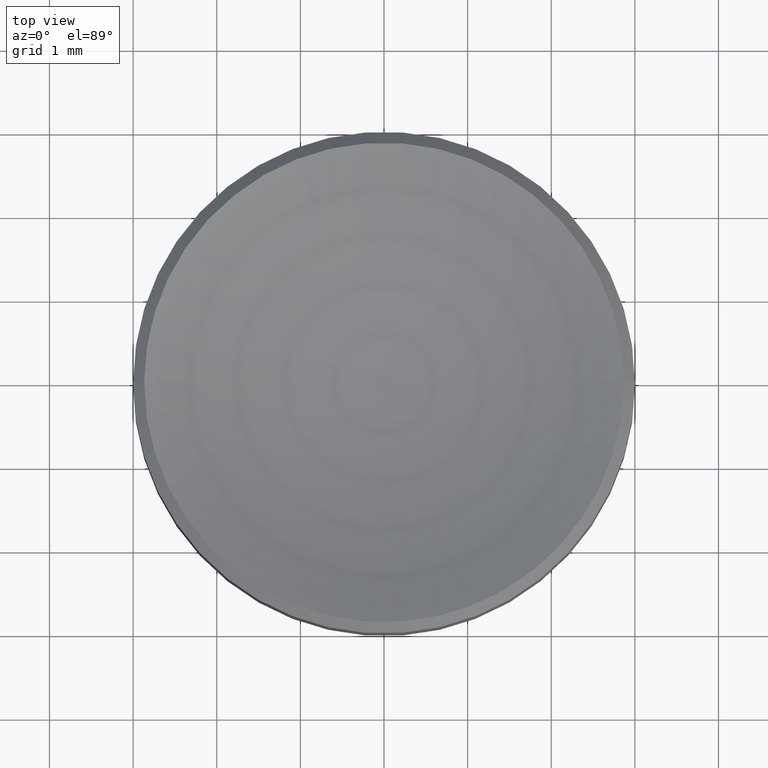
[diagram: clean part render]
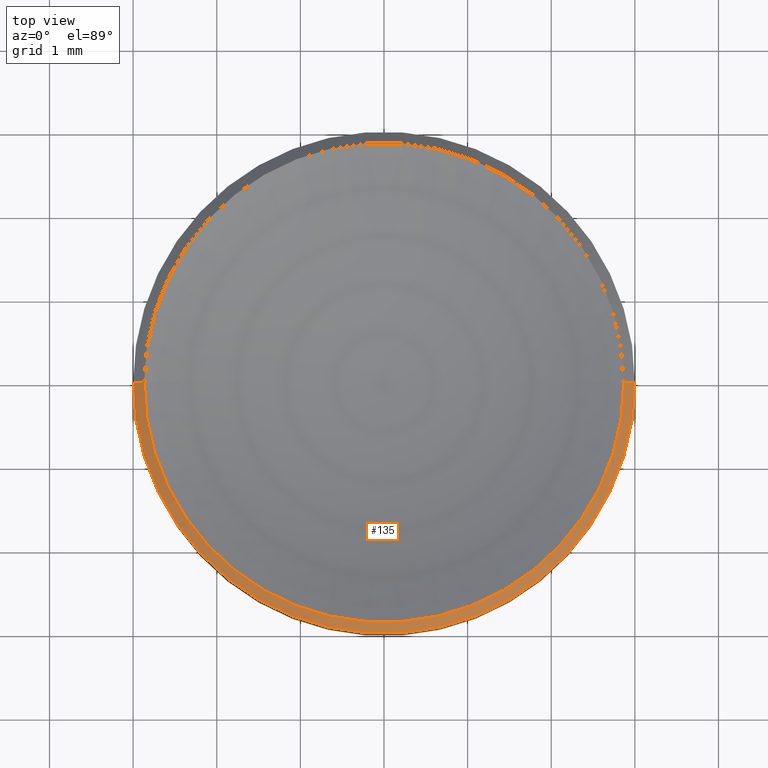
[diagram: same view with one face highlighted and labeled with its STEP entity id]
A machine part, top view. The second image highlights one B-rep face of the part: STEP entity #135.
In plain terms, the highlighted conical surface has half-angle 45 deg.
Its self-contained STEP definition (entity closure, byte-faithful):
#17 = DIRECTION ( 'NONE',  ( -1.000000000000000000, 0.000000000000000000, 0.000000000000000000 ) ) ;
#18 = EDGE_CURVE ( 'NONE', #139, #178, #134, .T. ) ;
#23 = ORIENTED_EDGE ( 'NONE', *, *, #148, .F. ) ;
#35 = ORIENTED_EDGE ( 'NONE', *, *, #108, .F. ) ;
#41 = CARTESIAN_POINT ( 'NONE',  ( 0.000000000000000000, 0.000000000000000000, 2.039999999999998259 ) ) ;
#54 = VECTOR ( 'NONE', #116, 1000.000000000000114 ) ;
#62 = DIRECTION ( 'NONE',  ( 0.000000000000000000, 0.000000000000000000, -1.000000000000000000 ) ) ;
#64 = CARTESIAN_POINT ( 'NONE',  ( 2.867573379116970411, 0.000000000000000000, 2.172426620883027404 ) ) ;
#65 = VERTEX_POINT ( 'NONE', #196 ) ;
#70 = AXIS2_PLACEMENT_3D ( 'NONE', #204, #62, #81 ) ;
#81 = DIRECTION ( 'NONE',  ( -1.000000000000000000, 0.000000000000000000, 0.000000000000000000 ) ) ;
#91 = CARTESIAN_POINT ( 'NONE',  ( -2.867573379116970411, 0.000000000000000000, 2.172426620883026960 ) ) ;
#93 = ORIENTED_EDGE ( 'NONE', *, *, #205, .F. ) ;
#94 = CARTESIAN_POINT ( 'NONE',  ( 0.000000000000000000, 0.000000000000000000, 2.172426620883026960 ) ) ;
#96 = CARTESIAN_POINT ( 'NONE',  ( -2.867573379116970411, 3.511764560055757538E-16, 2.172426620883027404 ) ) ;
#105 = AXIS2_PLACEMENT_3D ( 'NONE', #41, #181, #17 ) ;
#108 = EDGE_CURVE ( 'NONE', #65, #178, #182, .T. ) ;
#116 = DIRECTION ( 'NONE',  ( 0.7071067811865499042, 8.659560562354962440E-17, -0.7071067811865452413 ) ) ;
#134 = LINE ( 'NONE', #91, #250 ) ;
#135 = ADVANCED_FACE ( 'NONE', ( #246 ), #262, .T. ) ;
#136 = VERTEX_POINT ( 'NONE', #64 ) ;
#139 = VERTEX_POINT ( 'NONE', #96 ) ;
#148 = EDGE_CURVE ( 'NONE', #136, #65, #155, .T. ) ;
#155 = LINE ( 'NONE', #221, #54 ) ;
#157 = DIRECTION ( 'NONE',  ( -0.7071067811865499042, 0.000000000000000000, -0.7071067811865452413 ) ) ;
#165 = CIRCLE ( 'NONE', #176, 2.867573379116970411 ) ;
#176 = AXIS2_PLACEMENT_3D ( 'NONE', #94, #186, #188 ) ;
#178 = VERTEX_POINT ( 'NONE', #185 ) ;
#181 = DIRECTION ( 'NONE',  ( 0.000000000000000000, 0.000000000000000000, -1.000000000000000000 ) ) ;
#182 = CIRCLE ( 'NONE', #105, 3.000000000000000000 ) ;
#185 = CARTESIAN_POINT ( 'NONE',  ( -3.000000000000000000, 3.673940397442059868E-16, 2.039999999999998259 ) ) ;
#186 = DIRECTION ( 'NONE',  ( -0.000000000000000000, -0.000000000000000000, 1.000000000000000000 ) ) ;
#188 = DIRECTION ( 'NONE',  ( 1.000000000000000000, 0.000000000000000000, 0.000000000000000000 ) ) ;
#196 = CARTESIAN_POINT ( 'NONE',  ( 3.000000000000000000, 0.000000000000000000, 2.039999999999998259 ) ) ;
#204 = CARTESIAN_POINT ( 'NONE',  ( 0.000000000000000000, 0.000000000000000000, 2.172426620883026960 ) ) ;
#205 = EDGE_CURVE ( 'NONE', #139, #136, #165, .T. ) ;
#220 = ORIENTED_EDGE ( 'NONE', *, *, #18, .T. ) ;
#221 = CARTESIAN_POINT ( 'NONE',  ( 2.867573379116970411, 3.511764560055757538E-16, 2.172426620883026960 ) ) ;
#245 = EDGE_LOOP ( 'NONE', ( #23, #93, #220, #35 ) ) ;
#246 = FACE_OUTER_BOUND ( 'NONE', #245, .T. ) ;
#250 = VECTOR ( 'NONE', #157, 1000.000000000000114 ) ;
#262 = CONICAL_SURFACE ( 'NONE', #70, 2.867573379116970411, 0.7853981633974516097 ) ;